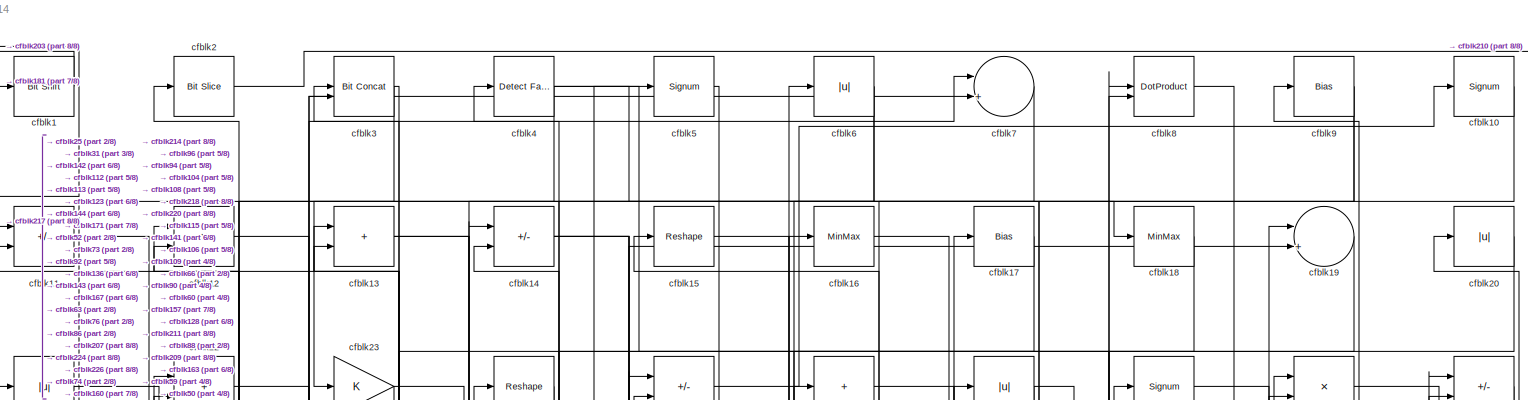
[diagram: root canvas - part 1/8, full width, top band]
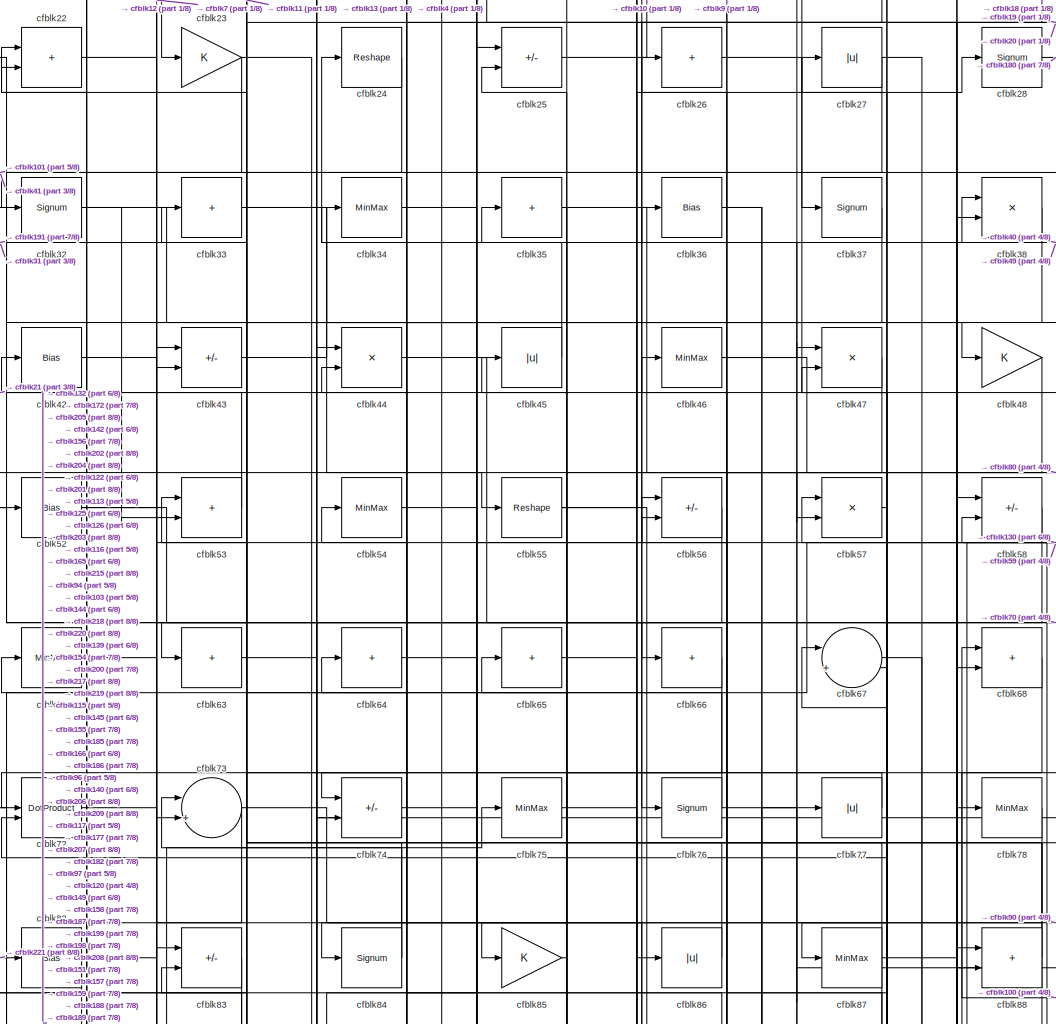
[diagram: root canvas - part 2/8, top center region]
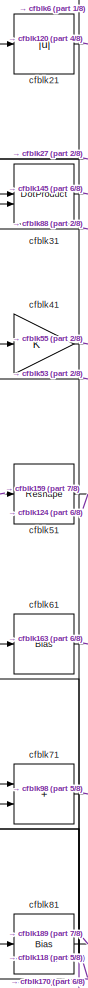
[diagram: root canvas - part 3/8, top left region]
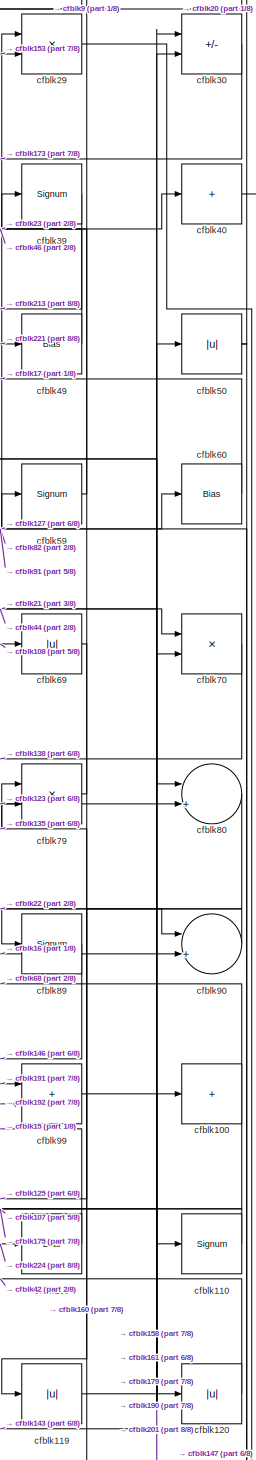
[diagram: root canvas - part 4/8, top right region]
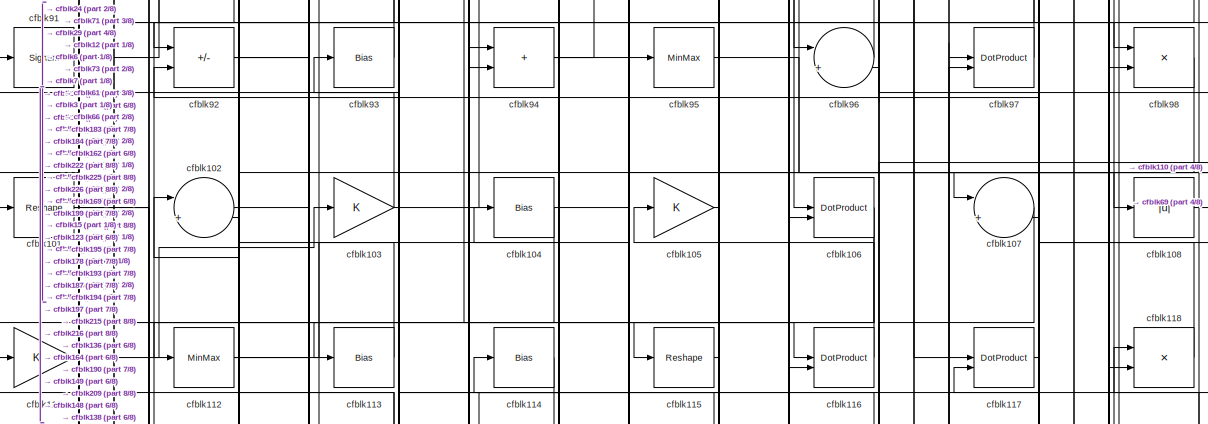
[diagram: root canvas - part 5/8, full width, middle band]
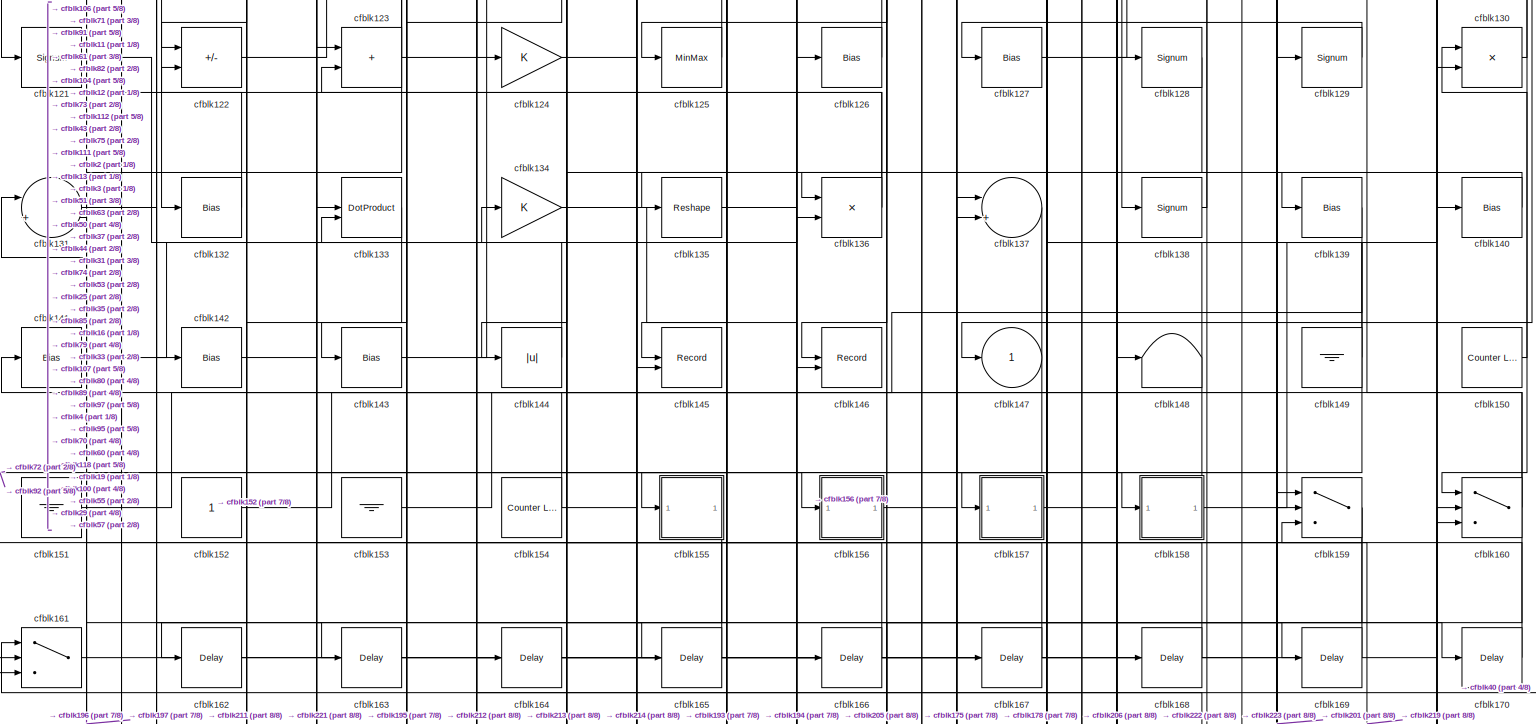
[diagram: root canvas - part 6/8, full width, middle band]
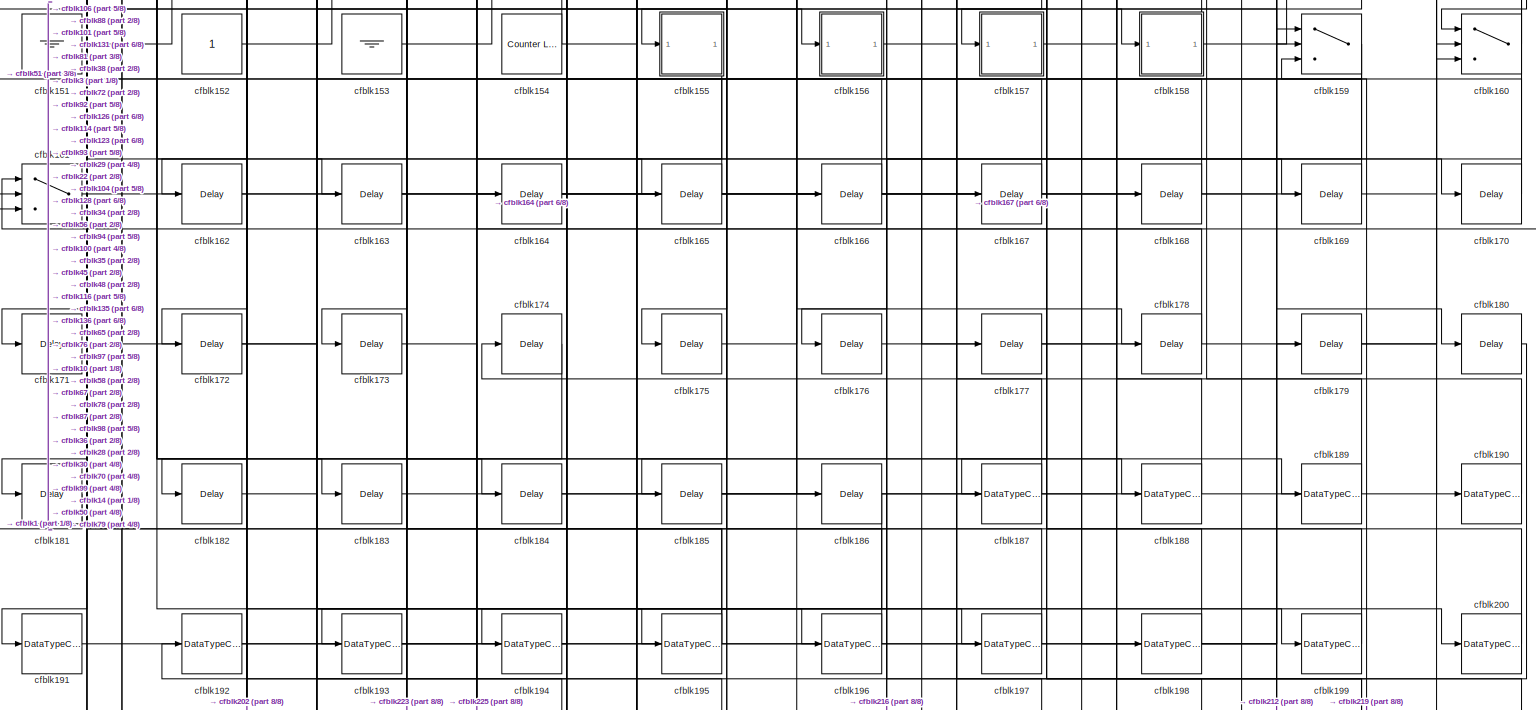
[diagram: root canvas - part 7/8, full width, bottom band]
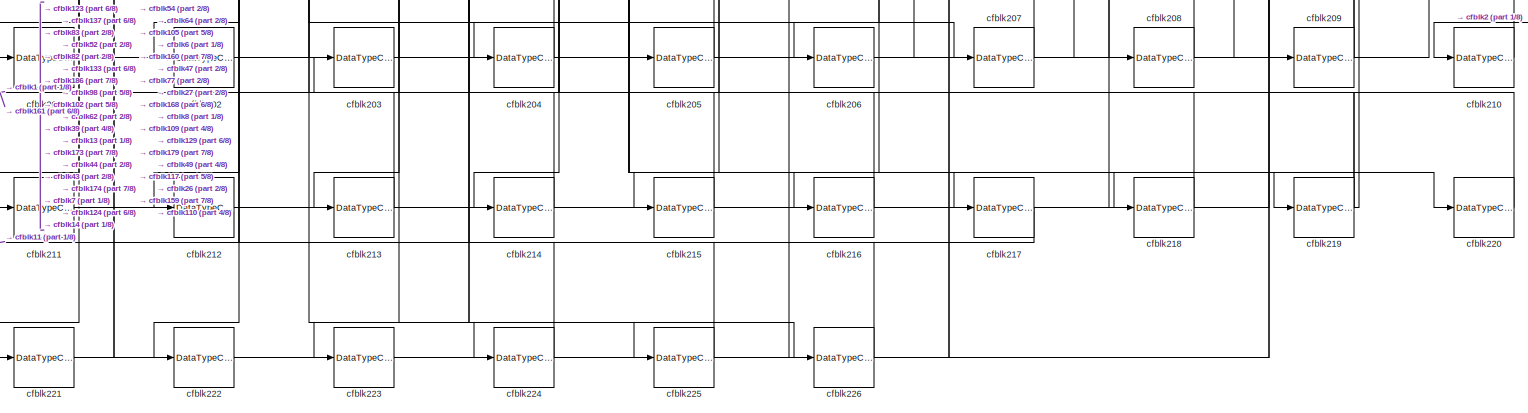
[diagram: root canvas - part 8/8, full width, bottom band]
MODEL slx_58196496ef14
KIND model
CONFIG AbsTol = auto
CONFIG EnableMultiTasking = off
CONFIG FixedStep = auto
CONFIG MaxStep = auto
CONFIG MinStep = auto
CONFIG RelTol = 1e-3
CONFIG SampleTimeConstraint = Unconstrained
CONFIG SolverName = VariableStepAuto
CONFIG StartTime = 0.0
CONFIG StopTime = 10.0
BLOCK [Reference] cfblk1  REF=hdlsllib/Logic and Bit
Operations/Bit Shift
  SourceBlock = hdlsllib/Logic and Bit\nOperations/Bit Shift
  SourceType = Bit Shift
BLOCK [Signum] cfblk10
BLOCK [Sum] cfblk100
  IconShape = rectangular
  Inputs = +
BLOCK [Reshape] cfblk101
BLOCK [Sum] cfblk102
  Inputs = |++
BLOCK [Gain] cfblk103
BLOCK [Bias] cfblk104
  Bias = 0.0
  SaturateOnIntegerOverflow = off
BLOCK [Gain] cfblk105
BLOCK [DotProduct] cfblk106
  OutDataTypeStr = Inherit: Inherit via internal rule
BLOCK [Sum] cfblk107
  Inputs = |++
BLOCK [Abs] cfblk108
  SaturateOnIntegerOverflow = off
BLOCK [Bias] cfblk109
  Bias = 0.0
  SaturateOnIntegerOverflow = off
BLOCK [Sum] cfblk11
  IconShape = rectangular
  Inputs = +-
BLOCK [Signum] cfblk110
BLOCK [Gain] cfblk111
BLOCK [MinMax] cfblk112
BLOCK [Bias] cfblk113
  Bias = 0.0
  SaturateOnIntegerOverflow = off
BLOCK [Bias] cfblk114
  Bias = 0.0
  SaturateOnIntegerOverflow = off
BLOCK [Reshape] cfblk115
BLOCK [DotProduct] cfblk116
  OutDataTypeStr = Inherit: Inherit via internal rule
BLOCK [DotProduct] cfblk117
  OutDataTypeStr = Inherit: Inherit via internal rule
BLOCK [Product] cfblk118
  Inputs = */
  RndMeth = Zero
  SaturateOnIntegerOverflow = on
BLOCK [Abs] cfblk119
  SaturateOnIntegerOverflow = off
BLOCK [Product] cfblk12
  Inputs = */
  RndMeth = Zero
  SaturateOnIntegerOverflow = on
BLOCK [Abs] cfblk120
  SaturateOnIntegerOverflow = off
BLOCK [Signum] cfblk121
BLOCK [Sum] cfblk122
  IconShape = rectangular
  Inputs = +-
BLOCK [Sum] cfblk123
  IconShape = rectangular
BLOCK [Gain] cfblk124
BLOCK [MinMax] cfblk125
BLOCK [Bias] cfblk126
  Bias = 0.0
  SaturateOnIntegerOverflow = off
BLOCK [Bias] cfblk127
  Bias = 0.0
  SaturateOnIntegerOverflow = off
BLOCK [Signum] cfblk128
BLOCK [Signum] cfblk129
BLOCK [Sum] cfblk13
  IconShape = rectangular
BLOCK [Product] cfblk130
  Inputs = */
  RndMeth = Zero
  SaturateOnIntegerOverflow = on
BLOCK [Sum] cfblk131
  Inputs = |++
BLOCK [Bias] cfblk132
  Bias = 0.0
  SaturateOnIntegerOverflow = off
BLOCK [DotProduct] cfblk133
  OutDataTypeStr = Inherit: Inherit via internal rule
BLOCK [Gain] cfblk134
BLOCK [Reshape] cfblk135
BLOCK [Product] cfblk136
  Inputs = */
  RndMeth = Zero
  SaturateOnIntegerOverflow = on
BLOCK [Sum] cfblk137
  Inputs = |++
BLOCK [Signum] cfblk138
BLOCK [Bias] cfblk139
  Bias = 0.0
  SaturateOnIntegerOverflow = off
BLOCK [Sum] cfblk14
  IconShape = rectangular
  Inputs = +-
BLOCK [Bias] cfblk140
  Bias = 0.0
  SaturateOnIntegerOverflow = off
BLOCK [Bias] cfblk141
  Bias = 0.0
  SaturateOnIntegerOverflow = off
BLOCK [Bias] cfblk142
  Bias = 0.0
  SaturateOnIntegerOverflow = off
BLOCK [Bias] cfblk143
  Bias = 0.0
  SaturateOnIntegerOverflow = off
BLOCK [Abs] cfblk144
  SaturateOnIntegerOverflow = off
BLOCK [Record] cfblk145
  CompatibilityTag = XY
  FileSettingsInternal = {"entries":[{"content":{"excelSettings":{"content":{},"type":"Streamout.ExcelSettings"}},"type":"Streamout.FileSettingStorage","uuid":""}],"packageUris":["http:\/\/schema.mathworks.com\/mf0\/streamout_blocks\/R2020a"],"version":"1.0"}
  Layout = [1 1]
  SignalsInternal = {"entries":[{"content":{"signals":[{"content":{"blockPath":[],"dimensions":[1],"domain":"","lineColor":"#a2142f","plots":[1],"port":1,"signalID":6211,"signalName":"XY Graph:1"},"type":"RecordBlkView.Signal","uuid":""},{"content":{"blockPath":[],"dimensions":[1],"domain":"","lineColor":"#139fff","plots":[1],"port":2,"signalID":6214,"signalName":"XY Graph:2"},"type":"RecordBlkView.Signal","uuid":""}...<+146ch>
  VisualizationBindings = {"xyplotplugin":{"info":[{"series":[{"bindingParametersList":[{"parameter":"X-Axis","signalID":6211,"signalName":"XY Graph:1"},{"parameter":"Y-Axis","signalID":6214,"signalName":"XY Graph:2"}],"seriesID":28742}],"subplotID":1}]}}
  st = -1
BLOCK [Record] cfblk146
  CompatibilityTag = XY
  FileSettingsInternal = {"entries":[{"content":{"excelSettings":{"content":{},"type":"Streamout.ExcelSettings"}},"type":"Streamout.FileSettingStorage","uuid":""}],"packageUris":["http:\/\/schema.mathworks.com\/mf0\/streamout_blocks\/R2020a"],"version":"1.0"}
  Layout = [1 1]
  SignalsInternal = {"entries":[{"content":{"signals":[{"content":{"blockPath":[],"dimensions":[1],"domain":"","lineColor":"#a2142f","plots":[1],"port":1,"signalID":6219,"signalName":"XY Graph:1"},"type":"RecordBlkView.Signal","uuid":""},{"content":{"blockPath":[],"dimensions":[1],"domain":"","lineColor":"#139fff","plots":[1],"port":2,"signalID":6222,"signalName":"XY Graph:2"},"type":"RecordBlkView.Signal","uuid":""}...<+146ch>
  VisualizationBindings = {"xyplotplugin":{"info":[{"series":[{"bindingParametersList":[{"parameter":"X-Axis","signalID":6219,"signalName":"XY Graph:1"},{"parameter":"Y-Axis","signalID":6222,"signalName":"XY Graph:2"}],"seriesID":43530}],"subplotID":1}]}}
  st = -1
BLOCK [Outport] cfblk147
  VectorParamsAs1DForOutWhenUnconnected = off
BLOCK [Terminator] cfblk148
BLOCK [Ground] cfblk149
BLOCK [Reshape] cfblk15
BLOCK [Reference] cfblk150  REF=hdlsllib/Sources/Counter
Limited
  SourceBlock = hdlsllib/Sources/Counter\nLimited
  SourceType = Counter Limited
BLOCK [Ground] cfblk151
BLOCK [Constant] cfblk152
  SampleTime = -1
BLOCK [Ground] cfblk153
BLOCK [Reference] cfblk154  REF=hdlsllib/Sources/Counter
Limited
  SourceBlock = hdlsllib/Sources/Counter\nLimited
  SourceType = Counter Limited
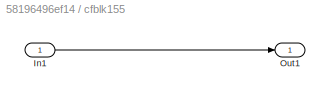
BLOCK [SubSystem] cfblk155
  LibrarySourceBlock = hdlsllib/Ports &\nSubsystems/Subsystem
BLOCK [Inport] cfblk155/In1
BLOCK [Outport] cfblk155/Out1
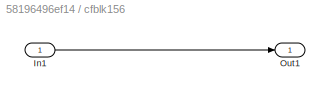
BLOCK [SubSystem] cfblk156
  LibrarySourceBlock = hdlsllib/Ports &\nSubsystems/Subsystem
BLOCK [Inport] cfblk156/In1
BLOCK [Outport] cfblk156/Out1
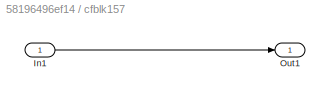
BLOCK [SubSystem] cfblk157
  LibrarySourceBlock = hdlsllib/Ports &\nSubsystems/Subsystem
BLOCK [Inport] cfblk157/In1
BLOCK [Outport] cfblk157/Out1
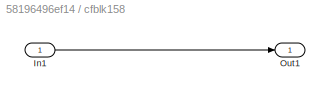
BLOCK [SubSystem] cfblk158
  LibrarySourceBlock = hdlsllib/Ports &\nSubsystems/Subsystem
BLOCK [Inport] cfblk158/In1
BLOCK [Outport] cfblk158/Out1
BLOCK [Switch] cfblk159
  InputSameDT = off
  SaturateOnIntegerOverflow = off
BLOCK [MinMax] cfblk16
BLOCK [Switch] cfblk160
  InputSameDT = off
  SaturateOnIntegerOverflow = off
BLOCK [Switch] cfblk161
  InputSameDT = off
  SaturateOnIntegerOverflow = off
BLOCK [Delay] cfblk162
  InputPortMap = u0
  SampleTime = 1
BLOCK [Delay] cfblk163
  InputPortMap = u0
  SampleTime = 1
BLOCK [Delay] cfblk164
  InputPortMap = u0
  SampleTime = 1
BLOCK [Delay] cfblk165
  InputPortMap = u0
  SampleTime = 1
BLOCK [Delay] cfblk166
  InputPortMap = u0
  SampleTime = 1
BLOCK [Delay] cfblk167
  InputPortMap = u0
  SampleTime = 1
BLOCK [Delay] cfblk168
  InputPortMap = u0
  SampleTime = 1
BLOCK [Delay] cfblk169
  InputPortMap = u0
  SampleTime = 1
BLOCK [Bias] cfblk17
  Bias = 0.0
  SaturateOnIntegerOverflow = off
BLOCK [Delay] cfblk170
  InputPortMap = u0
  SampleTime = 1
BLOCK [Delay] cfblk171
  InputPortMap = u0
  SampleTime = 1
BLOCK [Delay] cfblk172
  InputPortMap = u0
  SampleTime = 1
BLOCK [Delay] cfblk173
  InputPortMap = u0
  SampleTime = 1
BLOCK [Delay] cfblk174
  InputPortMap = u0
  SampleTime = 1
BLOCK [Delay] cfblk175
  InputPortMap = u0
  SampleTime = 1
BLOCK [Delay] cfblk176
  InputPortMap = u0
  SampleTime = 1
BLOCK [Delay] cfblk177
  InputPortMap = u0
  SampleTime = 1
BLOCK [Delay] cfblk178
  InputPortMap = u0
  SampleTime = 1
BLOCK [Delay] cfblk179
  InputPortMap = u0
  SampleTime = 1
BLOCK [MinMax] cfblk18
BLOCK [Delay] cfblk180
  InputPortMap = u0
  SampleTime = 1
BLOCK [Delay] cfblk181
  InputPortMap = u0
  SampleTime = 1
BLOCK [Delay] cfblk182
  InputPortMap = u0
  SampleTime = 1
BLOCK [Delay] cfblk183
  InputPortMap = u0
  SampleTime = 1
BLOCK [Delay] cfblk184
  InputPortMap = u0
  SampleTime = 1
BLOCK [Delay] cfblk185
  InputPortMap = u0
  SampleTime = 1
BLOCK [Delay] cfblk186
  InputPortMap = u0
  SampleTime = 1
BLOCK [DataTypeConversion] cfblk187
  OutDataTypeStr = uint8
  RndMeth = Floor
  SaturateOnIntegerOverflow = off
BLOCK [DataTypeConversion] cfblk188
  OutDataTypeStr = uint8
  RndMeth = Floor
  SaturateOnIntegerOverflow = off
BLOCK [DataTypeConversion] cfblk189
  OutDataTypeStr = uint8
  RndMeth = Floor
  SaturateOnIntegerOverflow = off
BLOCK [Sum] cfblk19
  Inputs = |++
BLOCK [DataTypeConversion] cfblk190
  OutDataTypeStr = uint8
  RndMeth = Floor
  SaturateOnIntegerOverflow = off
BLOCK [DataTypeConversion] cfblk191
  OutDataTypeStr = uint8
  RndMeth = Floor
  SaturateOnIntegerOverflow = off
BLOCK [DataTypeConversion] cfblk192
  OutDataTypeStr = uint8
  RndMeth = Floor
  SaturateOnIntegerOverflow = off
BLOCK [DataTypeConversion] cfblk193
  OutDataTypeStr = uint8
  RndMeth = Floor
  SaturateOnIntegerOverflow = off
BLOCK [DataTypeConversion] cfblk194
  OutDataTypeStr = uint8
  RndMeth = Floor
  SaturateOnIntegerOverflow = off
BLOCK [DataTypeConversion] cfblk195
  RndMeth = Floor
  SaturateOnIntegerOverflow = off
BLOCK [DataTypeConversion] cfblk196
  OutDataTypeStr = uint8
  RndMeth = Floor
  SaturateOnIntegerOverflow = off
BLOCK [DataTypeConversion] cfblk197
  OutDataTypeStr = uint8
  RndMeth = Floor
  SaturateOnIntegerOverflow = off
BLOCK [DataTypeConversion] cfblk198
  RndMeth = Floor
  SaturateOnIntegerOverflow = off
BLOCK [DataTypeConversion] cfblk199
  OutDataTypeStr = uint8
  RndMeth = Floor
  SaturateOnIntegerOverflow = off
BLOCK [Reference] cfblk2  REF=hdlsllib/Logic and Bit
Operations/Bit Slice
  SourceBlock = hdlsllib/Logic and Bit\nOperations/Bit Slice
  SourceType = Bit Slice
BLOCK [Abs] cfblk20
  SaturateOnIntegerOverflow = off
BLOCK [DataTypeConversion] cfblk200
  OutDataTypeStr = uint8
  RndMeth = Floor
  SaturateOnIntegerOverflow = off
BLOCK [DataTypeConversion] cfblk201
  RndMeth = Floor
  SaturateOnIntegerOverflow = off
BLOCK [DataTypeConversion] cfblk202
  OutDataTypeStr = uint8
  RndMeth = Floor
  SaturateOnIntegerOverflow = off
BLOCK [DataTypeConversion] cfblk203
  OutDataTypeStr = uint8
  RndMeth = Floor
  SaturateOnIntegerOverflow = off
BLOCK [DataTypeConversion] cfblk204
  OutDataTypeStr = uint8
  RndMeth = Floor
  SaturateOnIntegerOverflow = off
BLOCK [DataTypeConversion] cfblk205
  OutDataTypeStr = uint8
  RndMeth = Floor
  SaturateOnIntegerOverflow = off
BLOCK [DataTypeConversion] cfblk206
  RndMeth = Floor
  SaturateOnIntegerOverflow = off
BLOCK [DataTypeConversion] cfblk207
  OutDataTypeStr = uint8
  RndMeth = Floor
  SaturateOnIntegerOverflow = off
BLOCK [DataTypeConversion] cfblk208
  OutDataTypeStr = uint8
  RndMeth = Floor
  SaturateOnIntegerOverflow = off
BLOCK [DataTypeConversion] cfblk209
  RndMeth = Floor
  SaturateOnIntegerOverflow = off
BLOCK [Abs] cfblk21
  SaturateOnIntegerOverflow = off
BLOCK [DataTypeConversion] cfblk210
  OutDataTypeStr = uint8
  RndMeth = Floor
  SaturateOnIntegerOverflow = off
BLOCK [DataTypeConversion] cfblk211
  OutDataTypeStr = uint8
  RndMeth = Floor
  SaturateOnIntegerOverflow = off
BLOCK [DataTypeConversion] cfblk212
  OutDataTypeStr = uint8
  RndMeth = Floor
  SaturateOnIntegerOverflow = off
BLOCK [DataTypeConversion] cfblk213
  OutDataTypeStr = uint8
  RndMeth = Floor
  SaturateOnIntegerOverflow = off
BLOCK [DataTypeConversion] cfblk214
  OutDataTypeStr = uint8
  RndMeth = Floor
  SaturateOnIntegerOverflow = off
BLOCK [DataTypeConversion] cfblk215
  OutDataTypeStr = uint8
  RndMeth = Floor
  SaturateOnIntegerOverflow = off
BLOCK [DataTypeConversion] cfblk216
  OutDataTypeStr = uint8
  RndMeth = Floor
  SaturateOnIntegerOverflow = off
BLOCK [DataTypeConversion] cfblk217
  OutDataTypeStr = uint8
  RndMeth = Floor
  SaturateOnIntegerOverflow = off
BLOCK [DataTypeConversion] cfblk218
  OutDataTypeStr = uint8
  RndMeth = Floor
  SaturateOnIntegerOverflow = off
BLOCK [DataTypeConversion] cfblk219
  RndMeth = Floor
  SaturateOnIntegerOverflow = off
BLOCK [Sum] cfblk22
  IconShape = rectangular
BLOCK [DataTypeConversion] cfblk220
  OutDataTypeStr = uint8
  RndMeth = Floor
  SaturateOnIntegerOverflow = off
BLOCK [DataTypeConversion] cfblk221
  RndMeth = Floor
  SaturateOnIntegerOverflow = off
BLOCK [DataTypeConversion] cfblk222
  OutDataTypeStr = uint8
  RndMeth = Floor
  SaturateOnIntegerOverflow = off
BLOCK [DataTypeConversion] cfblk223
  OutDataTypeStr = uint8
  RndMeth = Floor
  SaturateOnIntegerOverflow = off
BLOCK [DataTypeConversion] cfblk224
  RndMeth = Floor
  SaturateOnIntegerOverflow = off
BLOCK [DataTypeConversion] cfblk225
  OutDataTypeStr = uint8
  RndMeth = Floor
  SaturateOnIntegerOverflow = off
BLOCK [DataTypeConversion] cfblk226
  OutDataTypeStr = uint8
  RndMeth = Floor
  SaturateOnIntegerOverflow = off
BLOCK [Gain] cfblk23
BLOCK [Reshape] cfblk24
BLOCK [Sum] cfblk25
  IconShape = rectangular
  Inputs = +-
BLOCK [Sum] cfblk26
  IconShape = rectangular
  Inputs = +
BLOCK [Abs] cfblk27
  SaturateOnIntegerOverflow = off
BLOCK [Signum] cfblk28
BLOCK [Product] cfblk29
  Inputs = */
  RndMeth = Zero
  SaturateOnIntegerOverflow = on
BLOCK [Reference] cfblk3  REF=hdlsllib/Logic and Bit
Operations/Bit Concat
  SourceBlock = hdlsllib/Logic and Bit\nOperations/Bit Concat
  SourceType = Bit Concat
BLOCK [Sum] cfblk30
  IconShape = rectangular
  Inputs = +-
BLOCK [DotProduct] cfblk31
  OutDataTypeStr = Inherit: Inherit via internal rule
BLOCK [Signum] cfblk32
BLOCK [Sum] cfblk33
  IconShape = rectangular
  Inputs = +
BLOCK [MinMax] cfblk34
BLOCK [Sum] cfblk35
  IconShape = rectangular
  Inputs = +
BLOCK [Bias] cfblk36
  Bias = 0.0
  SaturateOnIntegerOverflow = off
BLOCK [Signum] cfblk37
BLOCK [Product] cfblk38
  Inputs = */
  RndMeth = Zero
  SaturateOnIntegerOverflow = on
BLOCK [Signum] cfblk39
BLOCK [Reference] cfblk4  REF=hdlsllib/Logic and Bit
Operations/Detect Fall
Negative
  SourceBlock = hdlsllib/Logic and Bit\nOperations/Detect Fall\nNegative
  SourceType = Detect Fall Negative
BLOCK [Sum] cfblk40
  IconShape = rectangular
  Inputs = +
BLOCK [Gain] cfblk41
BLOCK [Bias] cfblk42
  Bias = 0.0
  SaturateOnIntegerOverflow = off
BLOCK [Sum] cfblk43
  IconShape = rectangular
  Inputs = +-
BLOCK [Product] cfblk44
  Inputs = */
  RndMeth = Zero
  SaturateOnIntegerOverflow = on
BLOCK [Abs] cfblk45
  SaturateOnIntegerOverflow = off
BLOCK [MinMax] cfblk46
BLOCK [Product] cfblk47
  Inputs = */
  RndMeth = Zero
  SaturateOnIntegerOverflow = on
BLOCK [Gain] cfblk48
BLOCK [Bias] cfblk49
  Bias = 0.0
  SaturateOnIntegerOverflow = off
BLOCK [Signum] cfblk5
BLOCK [Abs] cfblk50
  SaturateOnIntegerOverflow = off
BLOCK [Reshape] cfblk51
BLOCK [Bias] cfblk52
  Bias = 0.0
  SaturateOnIntegerOverflow = off
BLOCK [Sum] cfblk53
  IconShape = rectangular
BLOCK [MinMax] cfblk54
BLOCK [Reshape] cfblk55
BLOCK [Sum] cfblk56
  IconShape = rectangular
  Inputs = +-
BLOCK [Product] cfblk57
  Inputs = */
  RndMeth = Zero
  SaturateOnIntegerOverflow = on
BLOCK [Sum] cfblk58
  IconShape = rectangular
  Inputs = +-
BLOCK [Signum] cfblk59
BLOCK [Abs] cfblk6
  SaturateOnIntegerOverflow = off
BLOCK [Bias] cfblk60
  Bias = 0.0
  SaturateOnIntegerOverflow = off
BLOCK [Bias] cfblk61
  Bias = 0.0
  SaturateOnIntegerOverflow = off
BLOCK [MinMax] cfblk62
BLOCK [Sum] cfblk63
  IconShape = rectangular
  Inputs = +
BLOCK [Sum] cfblk64
  IconShape = rectangular
  Inputs = +
BLOCK [Sum] cfblk65
  IconShape = rectangular
  Inputs = +
BLOCK [Sum] cfblk66
  IconShape = rectangular
  Inputs = +
BLOCK [Sum] cfblk67
  Inputs = |++
BLOCK [Sum] cfblk68
  IconShape = rectangular
BLOCK [Abs] cfblk69
  SaturateOnIntegerOverflow = off
BLOCK [Sum] cfblk7
  Inputs = |++
BLOCK [Product] cfblk70
  Inputs = */
  RndMeth = Zero
  SaturateOnIntegerOverflow = on
BLOCK [Sum] cfblk71
  IconShape = rectangular
BLOCK [DotProduct] cfblk72
  OutDataTypeStr = Inherit: Inherit via internal rule
BLOCK [Sum] cfblk73
  Inputs = |++
BLOCK [Sum] cfblk74
  IconShape = rectangular
  Inputs = +-
BLOCK [MinMax] cfblk75
BLOCK [Signum] cfblk76
BLOCK [Abs] cfblk77
  SaturateOnIntegerOverflow = off
BLOCK [MinMax] cfblk78
BLOCK [Product] cfblk79
  Inputs = */
  RndMeth = Zero
  SaturateOnIntegerOverflow = on
BLOCK [DotProduct] cfblk8
  OutDataTypeStr = Inherit: Inherit via internal rule
BLOCK [Sum] cfblk80
  Inputs = |++
BLOCK [Bias] cfblk81
  Bias = 0.0
  SaturateOnIntegerOverflow = off
BLOCK [Bias] cfblk82
  Bias = 0.0
  SaturateOnIntegerOverflow = off
BLOCK [Sum] cfblk83
  IconShape = rectangular
  Inputs = +-
BLOCK [Signum] cfblk84
BLOCK [Gain] cfblk85
BLOCK [Abs] cfblk86
  SaturateOnIntegerOverflow = off
BLOCK [MinMax] cfblk87
BLOCK [Sum] cfblk88
  IconShape = rectangular
BLOCK [Signum] cfblk89
BLOCK [Bias] cfblk9
  Bias = 0.0
  SaturateOnIntegerOverflow = off
BLOCK [Sum] cfblk90
  Inputs = |++
BLOCK [Signum] cfblk91
BLOCK [Sum] cfblk92
  IconShape = rectangular
  Inputs = +-
BLOCK [Bias] cfblk93
  Bias = 0.0
  SaturateOnIntegerOverflow = off
BLOCK [Sum] cfblk94
  IconShape = rectangular
BLOCK [MinMax] cfblk95
BLOCK [Sum] cfblk96
  Inputs = |++
BLOCK [DotProduct] cfblk97
  OutDataTypeStr = Inherit: Inherit via internal rule
BLOCK [Product] cfblk98
  Inputs = */
  RndMeth = Zero
  SaturateOnIntegerOverflow = on
BLOCK [Sum] cfblk99
  IconShape = rectangular
NET cfblk100:1 -> cfblk175:1, cfblk68:1
NET cfblk101:1 -> cfblk183:1, cfblk184:1
LINE cfblk102:1 -> cfblk224:1
NET cfblk103:1 -> cfblk25:1, cfblk71:1
NET cfblk104:1 -> cfblk162:1, cfblk19:2
LINE cfblk105:1 -> cfblk215:1
NET cfblk106:1 -> cfblk121:1, cfblk171:1
LINE cfblk107:1 -> cfblk136:1
LINE cfblk108:1 -> cfblk69:1
LINE cfblk109:1 -> cfblk15:1
LINE cfblk10:1 -> cfblk157:1
LINE cfblk110:1 -> cfblk107:1
LINE cfblk111:1 -> cfblk103:1
NET cfblk112:1 -> cfblk169:1, cfblk95:1
LINE cfblk113:1 -> cfblk12:2
LINE cfblk114:1 -> cfblk193:1
LINE cfblk115:1 -> cfblk65:1
LINE cfblk116:1 -> cfblk35:1
LINE cfblk117:1 -> cfblk27:1
LINE cfblk118:1 -> cfblk81:1
LINE cfblk119:1 -> cfblk30:2
LINE cfblk11:1 -> cfblk142:1
LINE cfblk120:1 -> cfblk42:1
LINE cfblk121:1 -> cfblk134:1
LINE cfblk122:1 -> cfblk75:1
NET cfblk123:1 -> cfblk111:1, cfblk211:1, cfblk2:1, cfblk80:2
LINE cfblk124:1 -> cfblk205:1
LINE cfblk125:1 -> cfblk53:1
LINE cfblk126:1 -> cfblk33:1
LINE cfblk127:1 -> cfblk60:1
LINE cfblk128:1 -> cfblk194:1
LINE cfblk129:1 -> cfblk127:1
LINE cfblk12:1 -> cfblk73:2
LINE cfblk130:1 -> cfblk57:1
LINE cfblk131:1 -> cfblk195:1
LINE cfblk132:1 -> cfblk91:1
LINE cfblk133:1 -> cfblk212:1
NET cfblk134:1 -> cfblk146:2, cfblk170:1
NET cfblk135:1 -> cfblk178:1, cfblk79:2
NET cfblk136:1 -> cfblk122:2, cfblk3:1
LINE cfblk137:1 -> cfblk221:1
LINE cfblk138:1 -> cfblk118:1
LINE cfblk139:1 -> cfblk141:1
NET cfblk13:1 -> cfblk207:1, cfblk226:1
LINE cfblk140:1 -> cfblk135:1
LINE cfblk141:1 -> cfblk16:1
LINE cfblk142:1 -> cfblk43:2
LINE cfblk143:1 -> cfblk50:1
LINE cfblk144:1 -> cfblk12:1
NET cfblk149:1 -> cfblk161:3, cfblk72:2, cfblk92:2
NET cfblk14:1 -> cfblk108:1, cfblk218:1, cfblk220:1
LINE cfblk150:1 -> cfblk130:1
LINE cfblk151:1 -> cfblk38:2
LINE cfblk152:1 -> cfblk126:1
LINE cfblk153:1 -> cfblk29:2
NET cfblk154:1 -> cfblk22:1, cfblk56:2
LINE cfblk155/In1:1 -> cfblk155/Out1:1
LINE cfblk155:1 -> cfblk181:1
LINE cfblk156/In1:1 -> cfblk156/Out1:1
LINE cfblk156:1 -> cfblk167:1
LINE cfblk157/In1:1 -> cfblk157/Out1:1
LINE cfblk157:1 -> cfblk78:1
LINE cfblk158/In1:1 -> cfblk158/Out1:1
NET cfblk158:1 -> cfblk30:1, cfblk36:1
NET cfblk159:1 -> cfblk176:1, cfblk51:1
LINE cfblk15:1 -> cfblk106:2
NET cfblk160:1 -> cfblk14:2, cfblk216:1, cfblk79:1
LINE cfblk161:1 -> cfblk100:1
LINE cfblk162:1 -> cfblk118:2
LINE cfblk163:1 -> cfblk19:1
LINE cfblk164:1 -> cfblk97:2
LINE cfblk165:1 -> cfblk44:2
LINE cfblk166:1 -> cfblk25:2
LINE cfblk167:1 -> cfblk13:2
LINE cfblk168:1 -> cfblk123:1
LINE cfblk169:1 -> cfblk107:2
LINE cfblk16:1 -> cfblk90:2
LINE cfblk170:1 -> cfblk71:2
LINE cfblk171:1 -> cfblk3:2
LINE cfblk172:1 -> cfblk188:1
LINE cfblk173:1 -> cfblk225:1
LINE cfblk174:1 -> cfblk223:1
LINE cfblk175:1 -> cfblk136:2
LINE cfblk176:1 -> cfblk160:3
LINE cfblk177:1 -> cfblk88:1
LINE cfblk178:1 -> cfblk94:1
LINE cfblk179:1 -> cfblk70:2
LINE cfblk17:1 -> cfblk106:1
LINE cfblk180:1 -> cfblk192:1
LINE cfblk181:1 -> cfblk1:1
LINE cfblk182:1 -> cfblk196:1
LINE cfblk183:1 -> cfblk116:2
LINE cfblk184:1 -> cfblk98:2
LINE cfblk185:1 -> cfblk160:2
LINE cfblk186:1 -> cfblk202:1
LINE cfblk187:1 -> cfblk104:1
LINE cfblk188:1 -> cfblk58:1
LINE cfblk189:1 -> cfblk58:2
LINE cfblk18:1 -> cfblk63:1
LINE cfblk190:1 -> cfblk97:1
LINE cfblk191:1 -> cfblk99:1
LINE cfblk192:1 -> cfblk99:2
LINE cfblk193:1 -> cfblk164:1
LINE cfblk194:1 -> cfblk114:1
NET cfblk195:1 -> cfblk123:2, cfblk93:1
LINE cfblk196:1 -> cfblk131:1
LINE cfblk197:1 -> cfblk131:2
NET cfblk198:1 -> cfblk159:1, cfblk45:1
LINE cfblk199:1 -> cfblk67:1
LINE cfblk19:1 -> cfblk88:2
LINE cfblk1:1 -> cfblk203:1
LINE cfblk200:1 -> cfblk67:2
NET cfblk201:1 -> cfblk110:1, cfblk129:1
LINE cfblk202:1 -> cfblk83:1
LINE cfblk203:1 -> cfblk83:2
LINE cfblk204:1 -> cfblk43:1
LINE cfblk205:1 -> cfblk62:1
NET cfblk206:1 -> cfblk168:1, cfblk77:1
LINE cfblk207:1 -> cfblk47:1
LINE cfblk208:1 -> cfblk47:2
NET cfblk209:1 -> cfblk117:2, cfblk26:1
LINE cfblk20:1 -> cfblk74:1
LINE cfblk210:1 -> cfblk8:1
LINE cfblk211:1 -> cfblk8:2
LINE cfblk212:1 -> cfblk179:1
LINE cfblk213:1 -> cfblk133:1
LINE cfblk214:1 -> cfblk133:2
LINE cfblk215:1 -> cfblk44:1
LINE cfblk216:1 -> cfblk105:1
LINE cfblk217:1 -> cfblk11:1
LINE cfblk218:1 -> cfblk54:1
NET cfblk219:1 -> cfblk159:3, cfblk161:2, cfblk174:1
LINE cfblk21:1 -> cfblk120:1
LINE cfblk220:1 -> cfblk64:1
NET cfblk221:1 -> cfblk49:1, cfblk52:1, cfblk82:1
LINE cfblk222:1 -> cfblk137:1
LINE cfblk223:1 -> cfblk137:2
NET cfblk224:1 -> cfblk109:1, cfblk14:1, cfblk6:1
LINE cfblk225:1 -> cfblk102:1
LINE cfblk226:1 -> cfblk102:2
LINE cfblk22:1 -> cfblk90:1
NET cfblk23:1 -> cfblk116:1, cfblk32:1
LINE cfblk24:1 -> cfblk101:1
LINE cfblk25:1 -> cfblk10:1
LINE cfblk26:1 -> cfblk37:1
NET cfblk27:1 -> cfblk208:1, cfblk41:1
LINE cfblk28:1 -> cfblk180:1
LINE cfblk29:1 -> cfblk147:1
LINE cfblk2:1 -> cfblk210:1
LINE cfblk30:1 -> cfblk173:1
LINE cfblk31:1 -> cfblk145:2
NET cfblk32:1 -> cfblk48:1, cfblk53:2
NET cfblk33:1 -> cfblk57:2, cfblk86:1
LINE cfblk34:1 -> cfblk200:1
NET cfblk35:1 -> cfblk130:2, cfblk155:1
NET cfblk36:1 -> cfblk117:1, cfblk177:1
LINE cfblk37:1 -> cfblk144:1
LINE cfblk38:1 -> cfblk172:1
LINE cfblk39:1 -> cfblk213:1
NET cfblk3:1 -> cfblk143:1, cfblk92:1
LINE cfblk40:1 -> cfblk161:1
LINE cfblk41:1 -> cfblk55:1
LINE cfblk42:1 -> cfblk68:2
LINE cfblk43:1 -> cfblk38:1
LINE cfblk44:1 -> cfblk70:1
LINE cfblk45:1 -> cfblk24:1
NET cfblk46:1 -> cfblk40:1, cfblk80:1
LINE cfblk47:1 -> cfblk206:1
LINE cfblk48:1 -> cfblk185:1
LINE cfblk49:1 -> cfblk23:1
NET cfblk4:1 -> cfblk128:1, cfblk18:1, cfblk74:2
NET cfblk50:1 -> cfblk160:1, cfblk20:1
LINE cfblk51:1 -> cfblk124:1
NET cfblk52:1 -> cfblk76:1, cfblk7:2
LINE cfblk53:1 -> cfblk21:1
LINE cfblk54:1 -> cfblk217:1
NET cfblk55:1 -> cfblk140:1, cfblk28:1
LINE cfblk56:1 -> cfblk94:2
LINE cfblk57:1 -> cfblk87:1
LINE cfblk58:1 -> cfblk187:1
LINE cfblk59:1 -> cfblk9:1
LINE cfblk5:1 -> cfblk115:1
LINE cfblk60:1 -> cfblk17:1
LINE cfblk61:1 -> cfblk163:1
LINE cfblk62:1 -> cfblk204:1
LINE cfblk63:1 -> cfblk165:1
LINE cfblk64:1 -> cfblk219:1
LINE cfblk65:1 -> cfblk186:1
LINE cfblk66:1 -> cfblk113:1
LINE cfblk67:1 -> cfblk198:1
LINE cfblk68:1 -> cfblk85:1
LINE cfblk69:1 -> cfblk119:1
NET cfblk6:1 -> cfblk112:1, cfblk31:1
LINE cfblk70:1 -> cfblk138:1
LINE cfblk71:1 -> cfblk98:1
LINE cfblk72:1 -> cfblk156:1
NET cfblk73:1 -> cfblk122:1, cfblk96:1
LINE cfblk74:1 -> cfblk139:1
LINE cfblk75:1 -> cfblk166:1
NET cfblk76:1 -> cfblk13:1, cfblk158:1
LINE cfblk77:1 -> cfblk72:1
LINE cfblk78:1 -> cfblk84:1
LINE cfblk79:1 -> cfblk39:1
LINE cfblk7:1 -> cfblk214:1
LINE cfblk80:1 -> cfblk125:1
LINE cfblk81:1 -> cfblk189:1
NET cfblk82:1 -> cfblk132:1, cfblk59:1
LINE cfblk83:1 -> cfblk201:1
NET cfblk84:1 -> cfblk22:2, cfblk73:1
LINE cfblk85:1 -> cfblk145:1
LINE cfblk86:1 -> cfblk11:2
NET cfblk87:1 -> cfblk159:2, cfblk182:1, cfblk34:1
NET cfblk88:1 -> cfblk191:1, cfblk31:2, cfblk46:1
LINE cfblk89:1 -> cfblk146:1
LINE cfblk8:1 -> cfblk209:1
LINE cfblk90:1 -> cfblk89:1
LINE cfblk91:1 -> cfblk29:1
NET cfblk92:1 -> cfblk199:1, cfblk7:1
LINE cfblk93:1 -> cfblk61:1
NET cfblk94:1 -> cfblk197:1, cfblk5:1
LINE cfblk95:1 -> cfblk148:1
LINE cfblk96:1 -> cfblk4:1
LINE cfblk97:1 -> cfblk56:1
LINE cfblk98:1 -> cfblk222:1
LINE cfblk99:1 -> cfblk190:1
NET cfblk9:1 -> cfblk66:1, cfblk96:2
note: NET lines group one-source signal fan-out (src -> all destinations, sorted); 1:1 wires keep LINE
